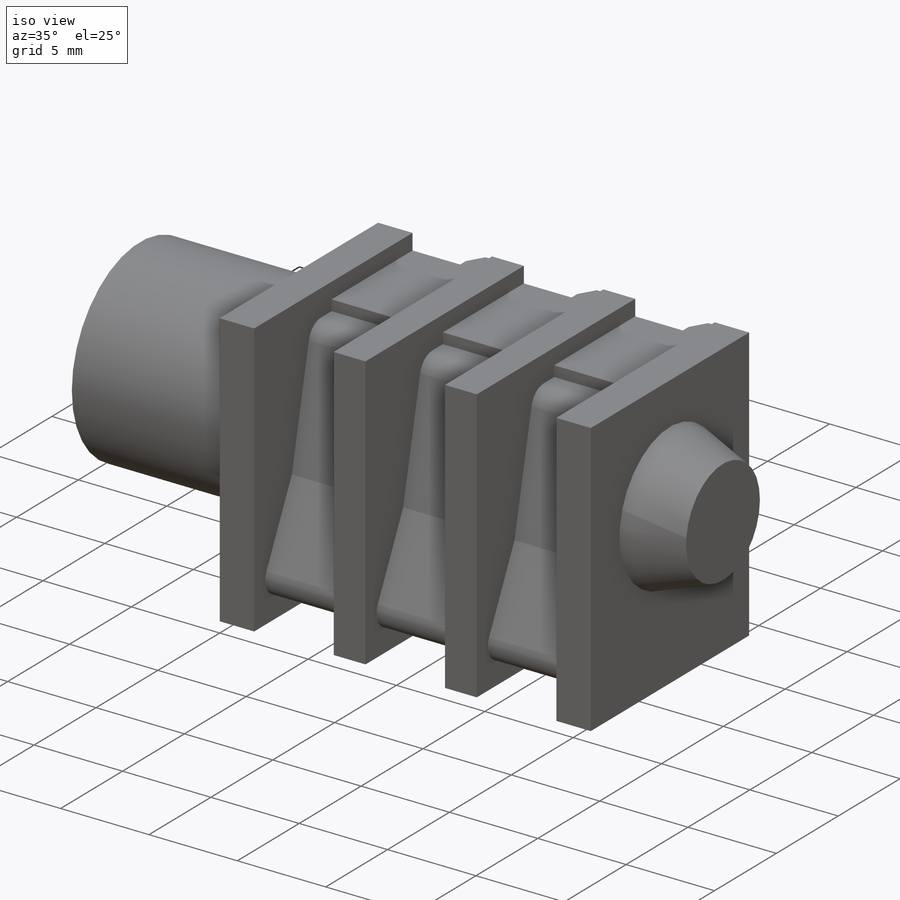
[diagram: iso view]
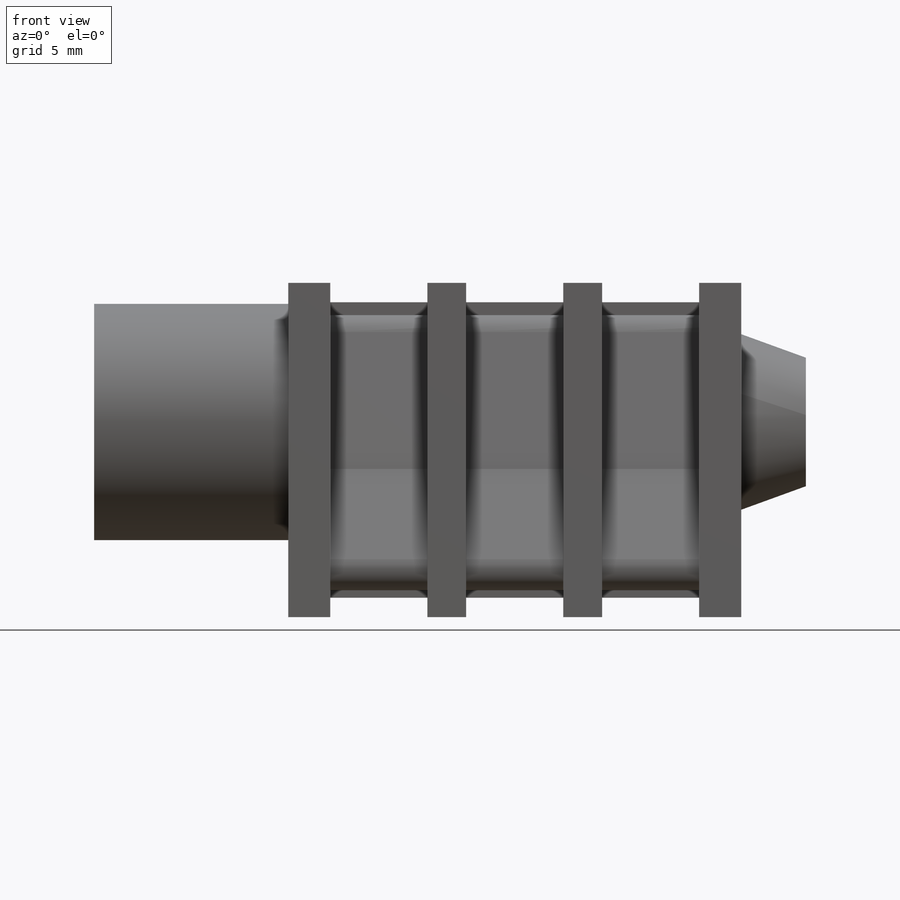
[diagram: front view]
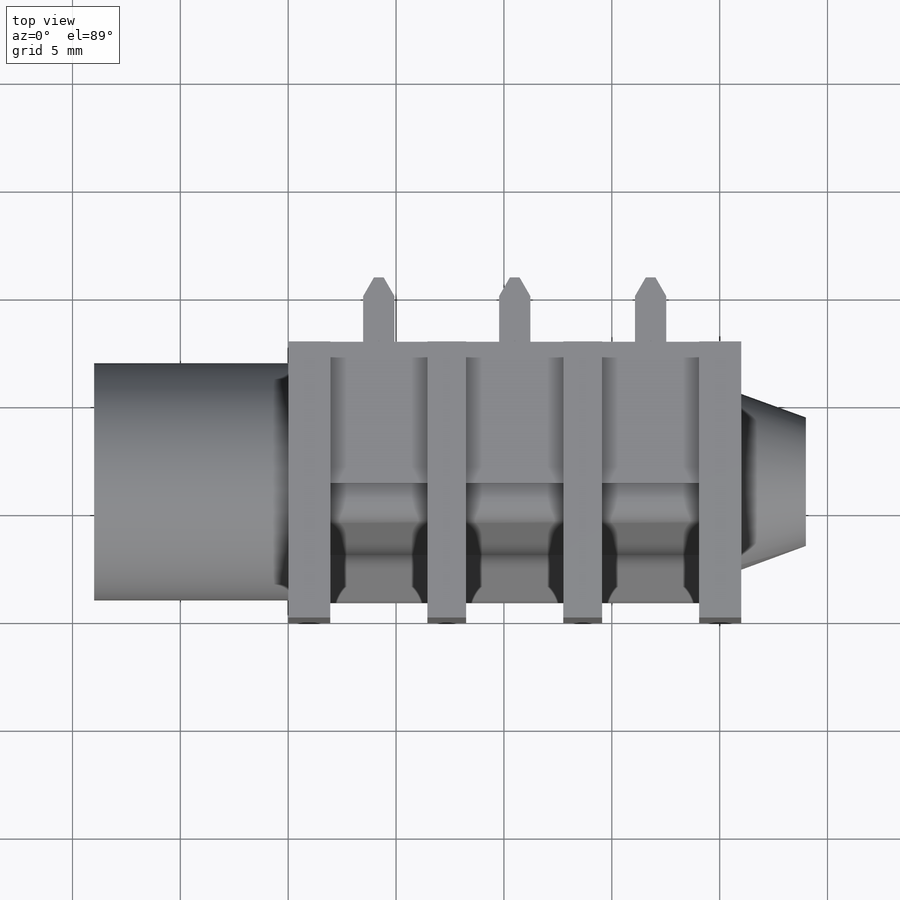
[diagram: top view]
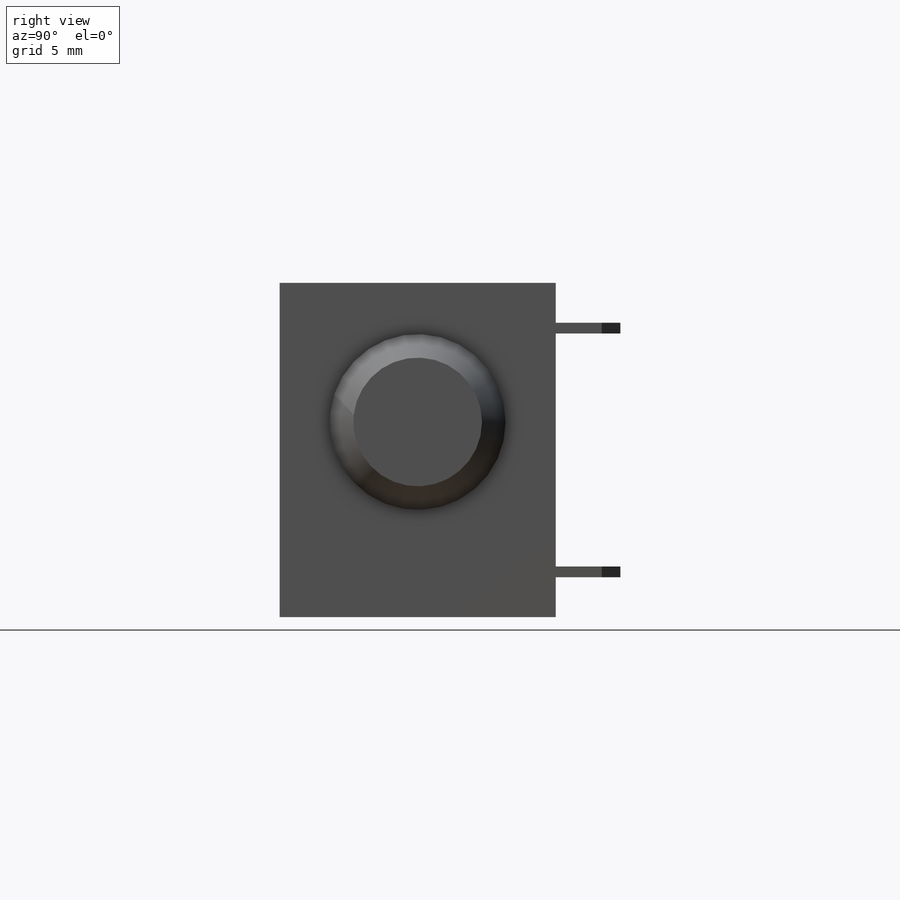
[diagram: right view]
SOLIDWORKS PART (.sldprt)
format: sldprt  version: not decoded by parser v0  size: 411,136 bytes
history: native  units: mm
features: sketch x7, extrude x3, cut_extrude x2, pattern_linear x2, material x1, plane x1, chamfer x1 (+13 scaffold rows collapsed)
feature tree (30):
  scaffold x13  (default folders/planes/origin — collapsed)
  material  "Material <not specified>"
  sketch  "Sketch1"  dims[D1=15.5mm D2=12.8mm]
  extrude  "Boss-Extrude1"  Depth=21mm
  sketch  "Sketch2"  dims[D2=6.4mm D3=11.0mm D1=1.3mm]
  extrude  "Boss-Extrude2"  Depth=9mm
  sketch  "Sketch3"  dims[D2=8.15mm D1=1.3mm]
  extrude  "Boss-Extrude3"  Depth=3mm
  plane  "Plane1"  Offset=4.2mm
  sketch  "Sketch6"  dims[D1=6.25mm D2=4.5mm]
  cut_extrude  "Cut-Extrude1"  [1 undecoded]
  sketch  "Sketch7"  dims[D1=0.9mm D2=0.9mm]
  cut_extrude  "Cut-Extrude2"  Depth=9mm
  pattern_linear  "LPattern1"  Count1=3 Count2=1 Spacing1=6.3mm Spacing2=10mm
  sketch  "Sketch8"  dims[c1.D1=0.5mm c1.D4=0.5mm c1.D2=1.75mm c1.D3=2.0mm c2.D1=4.5mm c2.D5=0.5mm c2.D6=10.0mm c2.D7=5.0mm]
  sketch  "Sketch9"  dims[c1.D1=3.0mm c1.D2=11.3mm c1.D3=2.15mm c2.D1=1.45mm c2.D5=0.5mm c2.D6=1.0mm c2.D7=5.0mm]
  chamfer  "Chamfer1"  Distance=0.5mm Angle=60deg
  pattern_linear  "LPattern2"  Count1=3 Count2=1 Spacing1=6.3mm Spacing2=10mm
decode coverage: 14 of 15 modeling features carry decoded parameters
note: 1 parameter value undecoded
note: suppression state not decoded; provenance and decode notes live in map.json
